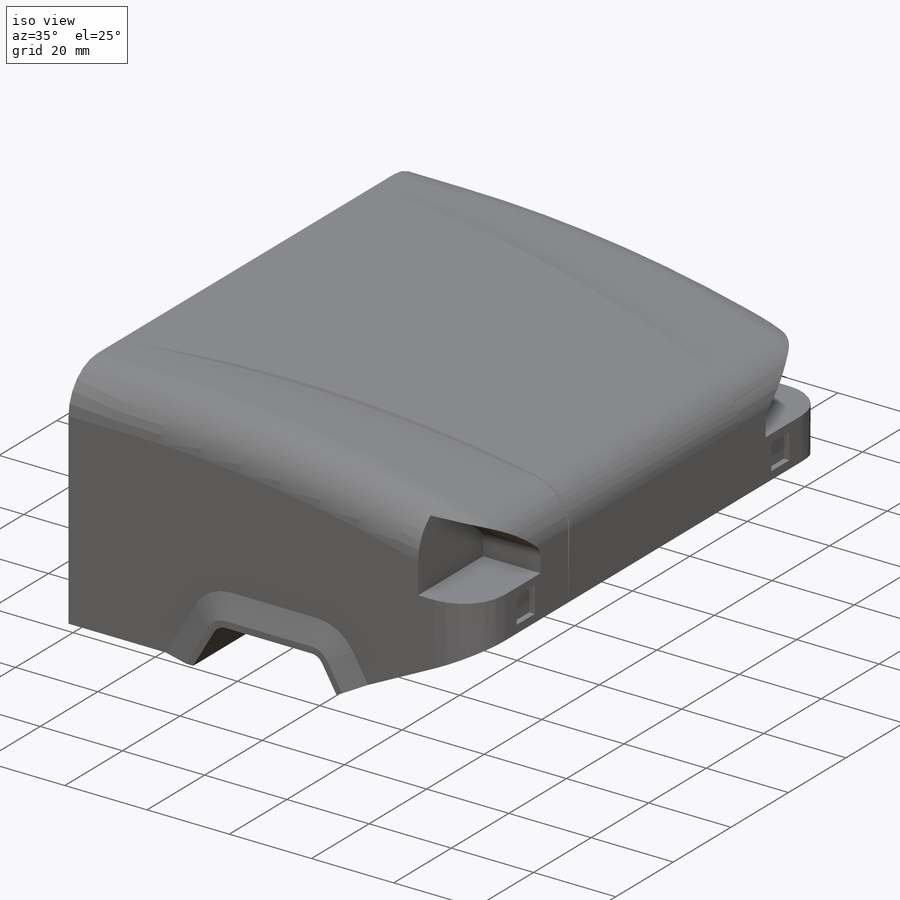
[diagram: iso view]
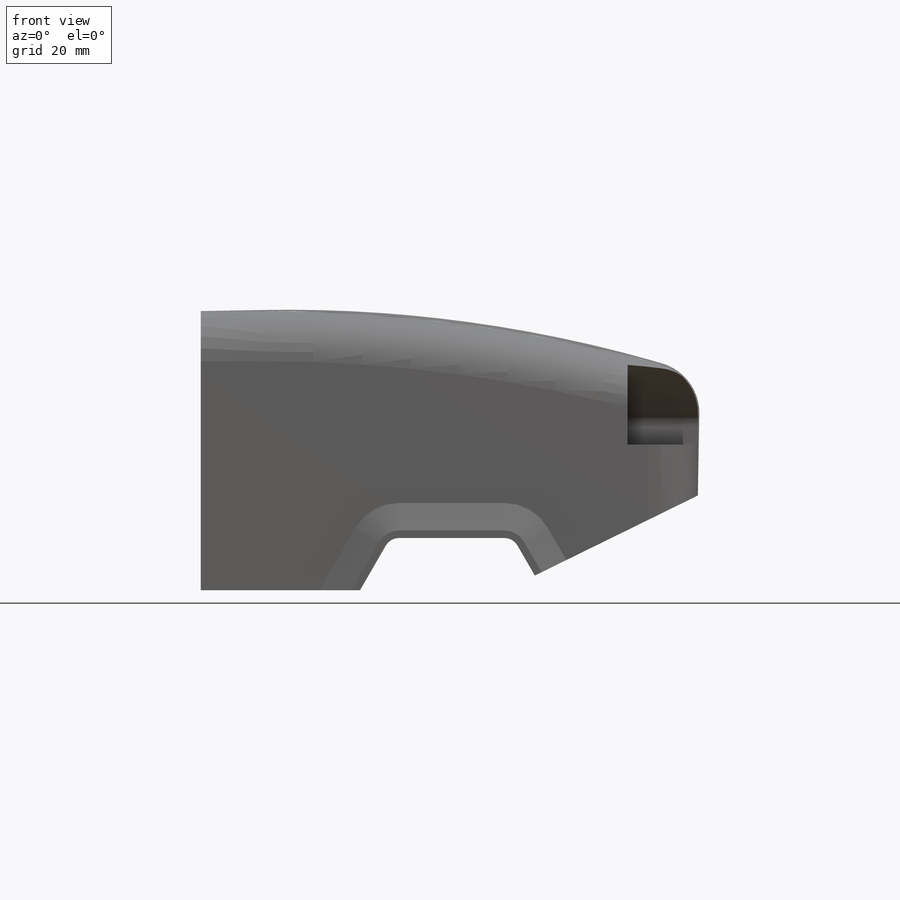
[diagram: front view]
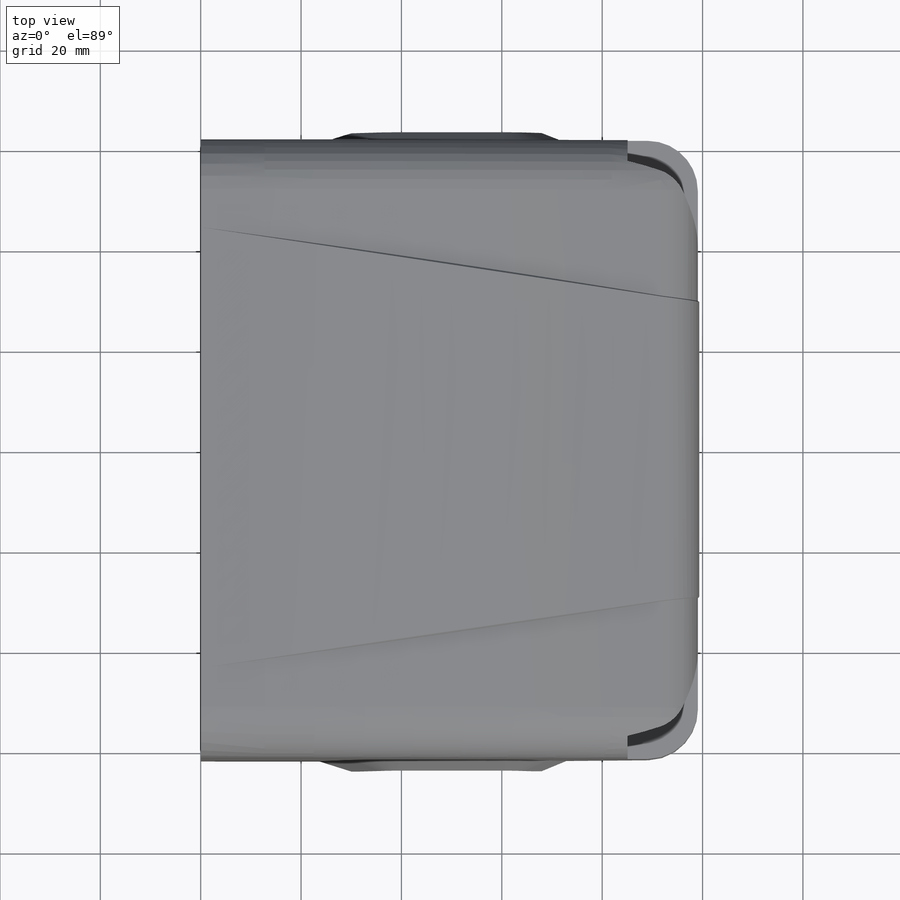
[diagram: top view]
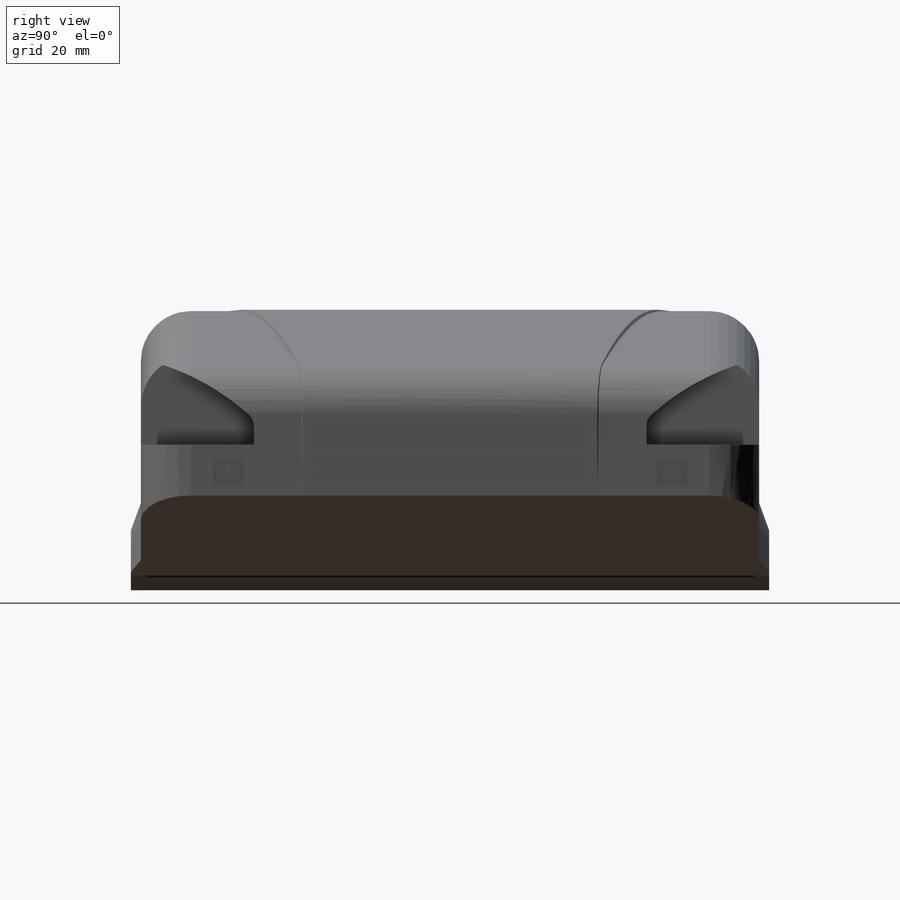
[diagram: right view]
SOLIDWORKS PART (.sldprt)
format: sldprt  version: not decoded by parser v0  size: 663,552 bytes
history: native  units: mm
features: sketch x9, cut_extrude x4, extrude x3, fillet x3, plane x3, mirror x2, chamfer x2, material x1 (+16 scaffold rows collapsed)
feature tree (43):
  scaffold x16  (default folders/planes/origin — collapsed)
  material  "1080 Polyurethane"
  sketch  "Sketch1"  dims[c1.D5=210.8327mm c1.D6=2.921mm c1.D9=42.0mm c1.D2=1.778mm c1.D3=~13.294936mm c2.D3=~176.837498deg c3.D3=1.778mm c3.D4=1.778mm c3.D1=12.7mm c3.D7=24.0mm c3.D8=55.626mm c3.D9=~3.260846mm c3.D5=~99.05571mm c3.D6=~36.752023mm c4.D3=1.778mm c4.D2=~11.890434mm c5.D2=120.0deg c5.D3=~8.065742mm c6.D3=120.0deg c6.D4=24.5mm c6.D5=10.41mm c6.D6=50.0mm c6.D10=12.62mm c6.D11=~99.05571mm c6.D12=~18.873977mm c6.D1=0.0mm c7.D5=0.0mm c7.D1=0.0mm]
  extrude  "Boss-Extrude1"  Depth=123.19mm
  fillet  "Fillet2"  Radius=3mm ModelUUID=0mm UUID=0mm
  fillet  "Fillet1"  Radius=10mm
  sketch  "Sketch3"  dims[D1=30.0mm D2=12.0mm]
  plane  "Plane1"  Offset=20mm
  sketch  "Sketch5"  dims[D1=30.0mm D2=15.0mm D3=10.0mm]
  cut_extrude  "Cut-Extrude1"  Depth=20mm
  sketch  "Sketch6"  dims[D6=48.0mm D1=29.0mm D2=16.0mm D3=22.5mm D4=4.0mm D5=5.0mm]
  cut_extrude  "Cut-Extrude2"  Depth=14mm
  mirror  "Mirror1"
  sketch  "Sketch7"  dims[c1.D1=~1.954899mm c2.D1=1.0deg c2.D2=~13.212338mm c3.D2=1.0deg]
  extrude  "Boss-Extrude2"  Depth=102mm
  plane  "Plane2"  Offset=60mm
  sketch  "Sketch8"  dims[D1=1.0mm D2=90.0mm D3=60.0mm]
  cut_extrude  "Cut-Extrude4"  [1 undecoded]
  plane  "Plane3"  Offset=102mm
  chamfer  "Chamfer1"  Distance=1mm Angle=60deg
  sketch  "Sketch10"  dims[D1=1.0mm D2=2.0mm D3=2.0mm D4=2.0mm D5=2.0mm D6=~54.064336mm]
  sketch  "Sketch12"  dims[D1=6.25mm D2=2.0mm]
  fillet  "Fillet4"  Radius=3mm
  cut_extrude  "Cut-Extrude5"  Depth=1.34mm
  sketch  "Sketch14"  dims[D1=7.0mm]
  extrude  "Boss-Extrude3"  Depth=2mm
  chamfer  "Chamfer2"  Distance=2mm Angle=70deg
  mirror  "Mirror2"  Thickness=80.01mm
decode coverage: 21 of 23 modeling features carry decoded parameters
note: ~ marks probable driven/reference dimensions
note: 1 parameter value undecoded
note: suppression state not decoded; provenance and decode notes live in map.json
